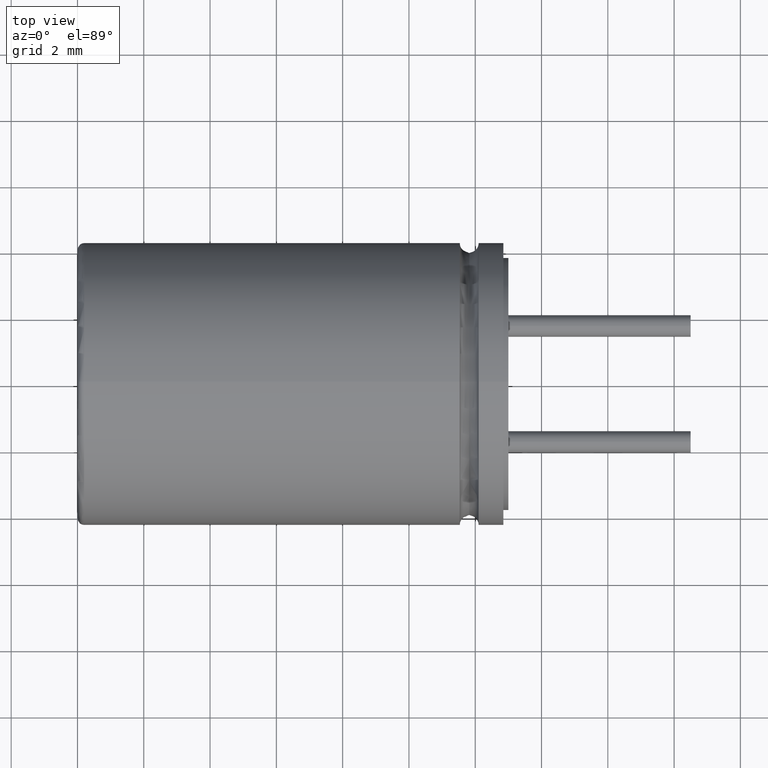
[diagram: clean part render]
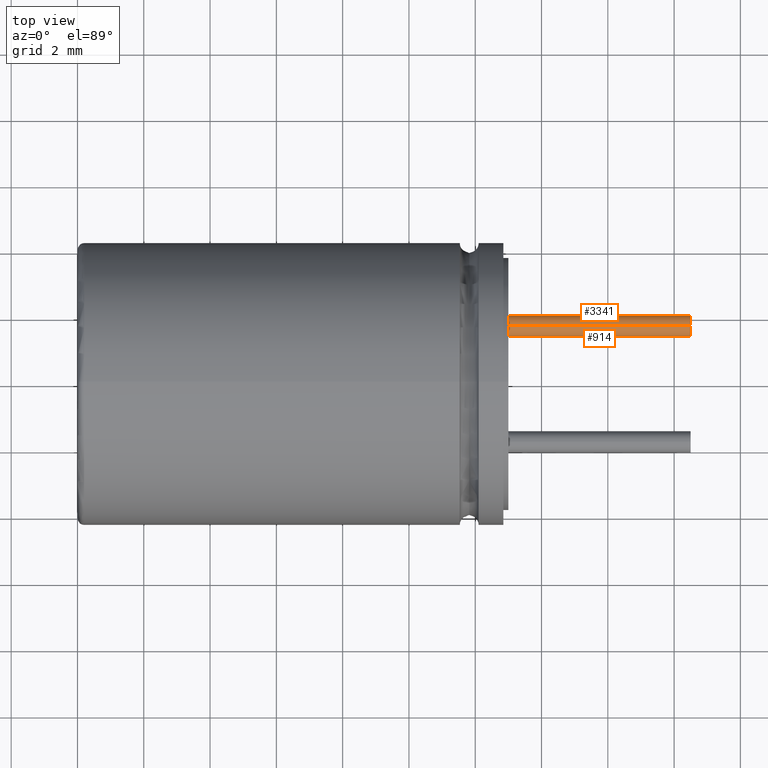
[diagram: same view with one multi-face feature highlighted, each face labeled with its STEP entity id]
A machine part, top view. The highlighted faces form ONE feature: a constant-radius fillet chain: 2 tangent blend faces with common blend radius 0.325 mm. The faces share edges in the B-rep.
Their STEP definitions:
[1] entity #3341 (Cylinder):
#8 = DIRECTION ( 'NONE',  ( 1.000000000000000000, 0.0000000000000000000, 0.0000000000000000000 ) ) ;
#63 = DIRECTION ( 'NONE',  ( 1.000000000000000000, 0.0000000000000000000, 0.0000000000000000000 ) ) ;
#160 = CARTESIAN_POINT ( 'NONE',  ( 13.00000000000000200, 1.750000000000000000, 0.3250000000000000100 ) ) ;
#167 = ORIENTED_EDGE ( 'NONE', *, *, #3114, .F. ) ;
#272 = CARTESIAN_POINT ( 'NONE',  ( 18.50000000000000400, 1.750000000000000000, 0.3250000000000000100 ) ) ;
#273 = CARTESIAN_POINT ( 'NONE',  ( 18.50000000000000400, 1.750000000000000000, 0.0000000000000000000 ) ) ;
#309 = CIRCLE ( 'NONE', #2842, 0.3250000000000000100 ) ;
#330 = FACE_OUTER_BOUND ( 'NONE', #2538, .T. ) ;
#417 = CARTESIAN_POINT ( 'NONE',  ( 18.50000000000000400, 1.750000000000000000, -0.3250000000000000100 ) ) ;
#609 = CARTESIAN_POINT ( 'NONE',  ( 13.00000000000000200, 1.750000000000000000, 0.0000000000000000000 ) ) ;
#1032 = ORIENTED_EDGE ( 'NONE', *, *, #1330, .T. ) ;
#1050 = CARTESIAN_POINT ( 'NONE',  ( 13.00000000000000200, 1.750000000000000000, -0.3250000000000000100 ) ) ;
#1188 = DIRECTION ( 'NONE',  ( 0.0000000000000000000, 0.0000000000000000000, -1.000000000000000000 ) ) ;
#1223 = EDGE_CURVE ( 'NONE', #1534, #1847, #3509, .T. ) ;
#1330 = EDGE_CURVE ( 'NONE', #1745, #3356, #309, .T. ) ;
#1456 = CARTESIAN_POINT ( 'NONE',  ( 18.50000000000000400, 1.750000000000000000, 0.0000000000000000000 ) ) ;
#1534 = VERTEX_POINT ( 'NONE', #2297 ) ;
#1689 = ORIENTED_EDGE ( 'NONE', *, *, #1223, .F. ) ;
#1745 = VERTEX_POINT ( 'NONE', #1050 ) ;
#1847 = VERTEX_POINT ( 'NONE', #2973 ) ;
#2297 = CARTESIAN_POINT ( 'NONE',  ( 18.50000000000000400, 1.750000000000000000, -0.3250000000000000100 ) ) ;
#2319 = VECTOR ( 'NONE', #2925, 1000.000000000000000 ) ;
#2402 = CYLINDRICAL_SURFACE ( 'NONE', #2646, 0.3250000000000000100 ) ;
#2451 = DIRECTION ( 'NONE',  ( -1.000000000000000000, -0.0000000000000000000, -0.0000000000000000000 ) ) ;
#2482 = AXIS2_PLACEMENT_3D ( 'NONE', #273, #8, #3534 ) ;
#2538 = EDGE_LOOP ( 'NONE', ( #1689, #2701, #1032, #167 ) ) ;
#2646 = AXIS2_PLACEMENT_3D ( 'NONE', #1456, #3387, #3373 ) ;
#2701 = ORIENTED_EDGE ( 'NONE', *, *, #2921, .T. ) ;
#2842 = AXIS2_PLACEMENT_3D ( 'NONE', #609, #63, #1188 ) ;
#2921 = EDGE_CURVE ( 'NONE', #1534, #1745, #3043, .T. ) ;
#2925 = DIRECTION ( 'NONE',  ( -1.000000000000000000, -0.0000000000000000000, -0.0000000000000000000 ) ) ;
#2973 = CARTESIAN_POINT ( 'NONE',  ( 18.50000000000000400, 1.750000000000000000, 0.3250000000000000100 ) ) ;
#2992 = LINE ( 'NONE', #272, #3195 ) ;
#3043 = LINE ( 'NONE', #417, #2319 ) ;
#3114 = EDGE_CURVE ( 'NONE', #1847, #3356, #2992, .T. ) ;
#3195 = VECTOR ( 'NONE', #2451, 1000.000000000000000 ) ;
#3341 = ADVANCED_FACE ( 'NONE', ( #330 ), #2402, .T. ) ;
#3356 = VERTEX_POINT ( 'NONE', #160 ) ;
#3373 = DIRECTION ( 'NONE',  ( 0.0000000000000000000, 0.0000000000000000000, 1.000000000000000000 ) ) ;
#3387 = DIRECTION ( 'NONE',  ( -1.000000000000000000, -0.0000000000000000000, -0.0000000000000000000 ) ) ;
#3509 = CIRCLE ( 'NONE', #2482, 0.3250000000000000100 ) ;
#3534 = DIRECTION ( 'NONE',  ( 0.0000000000000000000, 0.0000000000000000000, -1.000000000000000000 ) ) ;
[2] entity #914 (Cylinder):
#159 = EDGE_LOOP ( 'NONE', ( #681, #810, #551, #1883 ) ) ;
#160 = CARTESIAN_POINT ( 'NONE',  ( 13.00000000000000200, 1.750000000000000000, 0.3250000000000000100 ) ) ;
#272 = CARTESIAN_POINT ( 'NONE',  ( 18.50000000000000400, 1.750000000000000000, 0.3250000000000000100 ) ) ;
#417 = CARTESIAN_POINT ( 'NONE',  ( 18.50000000000000400, 1.750000000000000000, -0.3250000000000000100 ) ) ;
#551 = ORIENTED_EDGE ( 'NONE', *, *, #3114, .T. ) ;
#681 = ORIENTED_EDGE ( 'NONE', *, *, #2921, .F. ) ;
#810 = ORIENTED_EDGE ( 'NONE', *, *, #1398, .F. ) ;
#914 = ADVANCED_FACE ( 'NONE', ( #2392 ), #3512, .T. ) ;
#973 = AXIS2_PLACEMENT_3D ( 'NONE', #1750, #2870, #2598 ) ;
#1050 = CARTESIAN_POINT ( 'NONE',  ( 13.00000000000000200, 1.750000000000000000, -0.3250000000000000100 ) ) ;
#1172 = CIRCLE ( 'NONE', #2878, 0.3250000000000000100 ) ;
#1398 = EDGE_CURVE ( 'NONE', #1847, #1534, #2347, .T. ) ;
#1457 = CARTESIAN_POINT ( 'NONE',  ( 18.50000000000000400, 1.750000000000000000, 0.0000000000000000000 ) ) ;
#1534 = VERTEX_POINT ( 'NONE', #2297 ) ;
#1745 = VERTEX_POINT ( 'NONE', #1050 ) ;
#1750 = CARTESIAN_POINT ( 'NONE',  ( 18.50000000000000400, 1.750000000000000000, 0.0000000000000000000 ) ) ;
#1847 = VERTEX_POINT ( 'NONE', #2973 ) ;
#1883 = ORIENTED_EDGE ( 'NONE', *, *, #2471, .T. ) ;
#1941 = DIRECTION ( 'NONE',  ( 1.000000000000000000, 0.0000000000000000000, 0.0000000000000000000 ) ) ;
#2212 = DIRECTION ( 'NONE',  ( -1.000000000000000000, -0.0000000000000000000, -0.0000000000000000000 ) ) ;
#2297 = CARTESIAN_POINT ( 'NONE',  ( 18.50000000000000400, 1.750000000000000000, -0.3250000000000000100 ) ) ;
#2319 = VECTOR ( 'NONE', #2925, 1000.000000000000000 ) ;
#2347 = CIRCLE ( 'NONE', #973, 0.3250000000000000100 ) ;
#2392 = FACE_OUTER_BOUND ( 'NONE', #159, .T. ) ;
#2418 = CARTESIAN_POINT ( 'NONE',  ( 13.00000000000000200, 1.750000000000000000, 0.0000000000000000000 ) ) ;
#2451 = DIRECTION ( 'NONE',  ( -1.000000000000000000, -0.0000000000000000000, -0.0000000000000000000 ) ) ;
#2471 = EDGE_CURVE ( 'NONE', #3356, #1745, #1172, .T. ) ;
#2526 = DIRECTION ( 'NONE',  ( 0.0000000000000000000, 0.0000000000000000000, 1.000000000000000000 ) ) ;
#2598 = DIRECTION ( 'NONE',  ( 0.0000000000000000000, 0.0000000000000000000, -1.000000000000000000 ) ) ;
#2870 = DIRECTION ( 'NONE',  ( 1.000000000000000000, 0.0000000000000000000, 0.0000000000000000000 ) ) ;
#2878 = AXIS2_PLACEMENT_3D ( 'NONE', #2418, #1941, #3347 ) ;
#2900 = AXIS2_PLACEMENT_3D ( 'NONE', #1457, #2212, #2526 ) ;
#2921 = EDGE_CURVE ( 'NONE', #1534, #1745, #3043, .T. ) ;
#2925 = DIRECTION ( 'NONE',  ( -1.000000000000000000, -0.0000000000000000000, -0.0000000000000000000 ) ) ;
#2973 = CARTESIAN_POINT ( 'NONE',  ( 18.50000000000000400, 1.750000000000000000, 0.3250000000000000100 ) ) ;
#2992 = LINE ( 'NONE', #272, #3195 ) ;
#3043 = LINE ( 'NONE', #417, #2319 ) ;
#3114 = EDGE_CURVE ( 'NONE', #1847, #3356, #2992, .T. ) ;
#3195 = VECTOR ( 'NONE', #2451, 1000.000000000000000 ) ;
#3347 = DIRECTION ( 'NONE',  ( 0.0000000000000000000, 0.0000000000000000000, -1.000000000000000000 ) ) ;
#3356 = VERTEX_POINT ( 'NONE', #160 ) ;
#3512 = CYLINDRICAL_SURFACE ( 'NONE', #2900, 0.3250000000000000100 ) ;